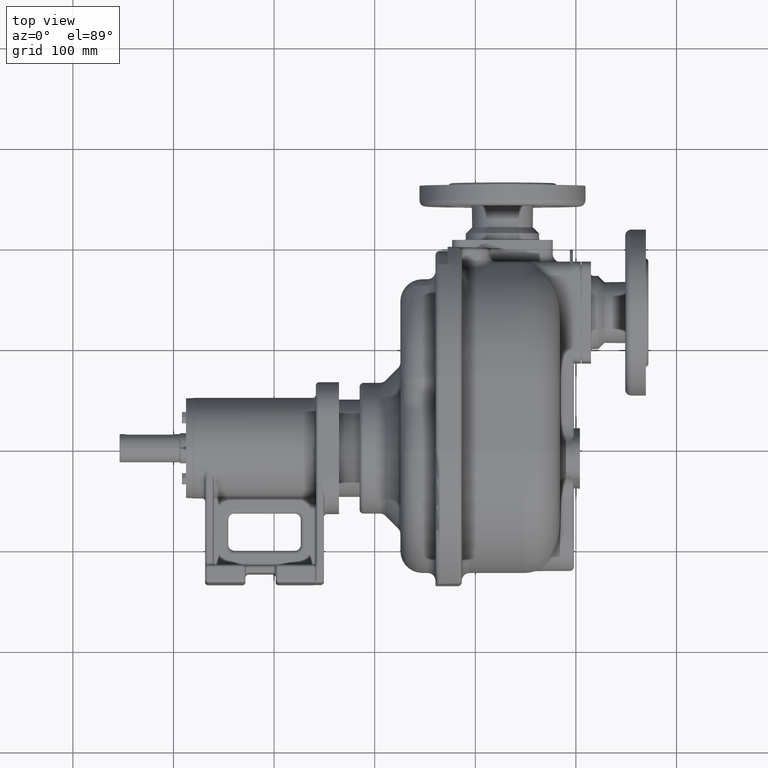
[diagram: clean part render]
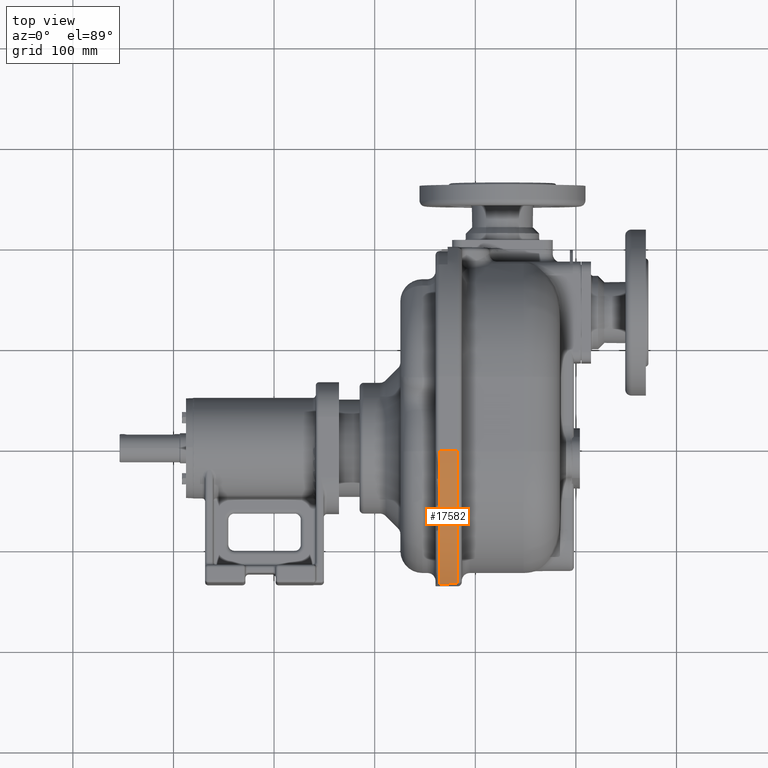
[diagram: same view with one face highlighted and labeled with its STEP entity id]
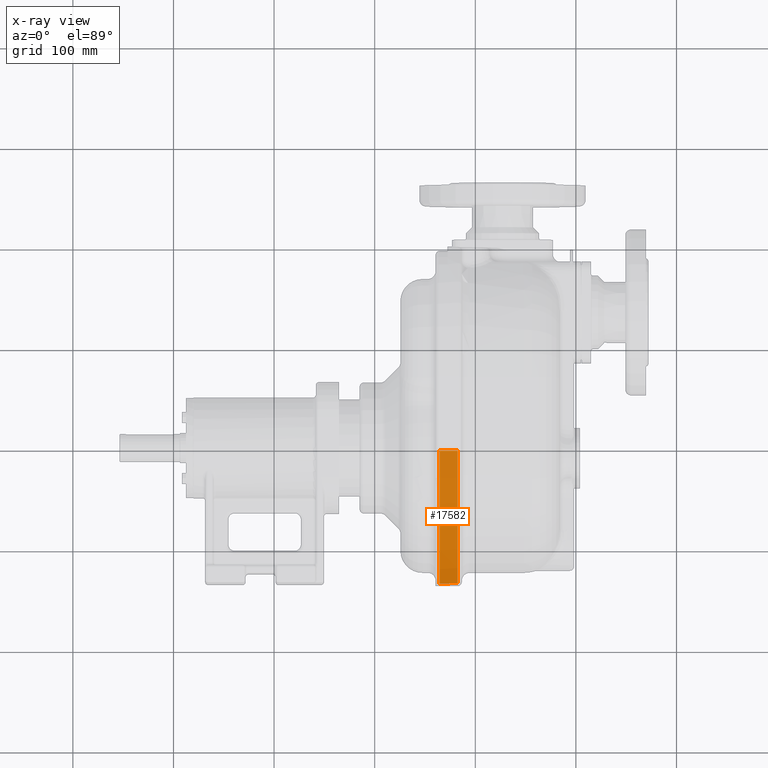
[diagram: x-ray of the same camera — body ghosted, the highlighted face saturated]
A machine part, top view. The second image highlights one B-rep face of the part: STEP entity #17582.
The next image is the same camera in x-ray: the body ghosted, the highlighted face saturated — about 0% of this face is hidden behind the body in this view.
In plain terms, the highlighted cylindrical surface (partial cylindrical patch) has radius 147 mm, axis along (-1, 0, 0).
Its self-contained STEP definition (entity closure, byte-faithful):
#4636=DIRECTION('',(1.E0,1.776356839400E-14,3.641531520771E-14));
#4637=VECTOR('',#4636,8.E0);
#4638=CARTESIAN_POINT('',(-2.55E1,-1.350791366906E2,6.347202492855E1));
#4639=LINE('',#4638,#4637);
#4640=DIRECTION('',(-1.E0,0.E0,0.E0));
#4641=VECTOR('',#4640,1.E1);
#4642=CARTESIAN_POINT('',(-2.55E1,-1.36E2,6.169332800213E1));
#4643=LINE('',#4642,#4641);
#4644=CARTESIAN_POINT('',(-3.55E1,-5.E0,-5.E0));
#4645=DIRECTION('',(-1.E0,0.E0,0.E0));
#4646=DIRECTION('',(0.E0,-8.911564625850E-1,4.536961088580E-1));
#4647=AXIS2_PLACEMENT_3D('',#4644,#4645,#4646);
#4649=DIRECTION('',(1.E0,0.E0,0.E0));
#4650=VECTOR('',#4649,1.8E1);
#4651=CARTESIAN_POINT('',(-3.55E1,-5.E0,1.42E2));
#4652=LINE('',#4651,#4650);
#4653=CARTESIAN_POINT('',(-1.75E1,-5.E0,-5.E0));
#4654=DIRECTION('',(1.E0,0.E0,0.E0));
#4655=DIRECTION('',(0.E0,0.E0,1.E0));
#4656=AXIS2_PLACEMENT_3D('',#4653,#4654,#4655);
#4672=CARTESIAN_POINT('',(-2.55E1,-5.E0,-5.E0));
#4673=DIRECTION('',(-1.E0,0.E0,0.E0));
#4674=DIRECTION('',(0.E0,-8.911564625850E-1,4.536961088580E-1));
#4675=AXIS2_PLACEMENT_3D('',#4672,#4673,#4674);
#4723=CARTESIAN_POINT('',(-3.55E1,-1.36E2,6.169332800213E1));
#10106=CARTESIAN_POINT('',(-1.75E1,-1.350791366906E2,6.347202492855E1));
#10107=VERTEX_POINT('',#10106);
#10110=CARTESIAN_POINT('',(-1.75E1,-5.E0,1.42E2));
#10111=VERTEX_POINT('',#10110);
#10243=CARTESIAN_POINT('',(-3.55E1,-5.E0,1.42E2));
#10245=VERTEX_POINT('',#10243);
#10277=VERTEX_POINT('',#4723);
#10279=CARTESIAN_POINT('',(-2.55E1,-1.36E2,6.169332800213E1));
#10280=VERTEX_POINT('',#10279);
#10295=CARTESIAN_POINT('',(-2.55E1,-1.350791366906E2,6.347202492855E1));
#10297=VERTEX_POINT('',#10295);
#17564=CARTESIAN_POINT('',(-2.75E1,-5.E0,-5.E0));
#17565=DIRECTION('',(-1.E0,0.E0,0.E0));
#17566=DIRECTION('',(0.E0,0.E0,1.E0));
#17567=AXIS2_PLACEMENT_3D('',#17564,#17565,#17566);
#17568=CYLINDRICAL_SURFACE('',#17567,1.47E2);
#17570=ORIENTED_EDGE('',*,*,#17569,.F.);
#17572=ORIENTED_EDGE('',*,*,#17571,.F.);
#17574=ORIENTED_EDGE('',*,*,#17573,.T.);
#17576=ORIENTED_EDGE('',*,*,#17575,.T.);
#17577=ORIENTED_EDGE('',*,*,#17554,.T.);
#17579=ORIENTED_EDGE('',*,*,#17578,.T.);
#17580=EDGE_LOOP('',(#17570,#17572,#17574,#17576,#17577,#17579));
#17581=FACE_OUTER_BOUND('',#17580,.F.);
#17582=ADVANCED_FACE('',(#17581),#17568,.T.);
#4648=CIRCLE('',#4647,1.47E2);
#4657=CIRCLE('',#4656,1.47E2);
#4676=CIRCLE('',#4675,1.47E2);
#17554=EDGE_CURVE('',#10245,#10111,#4652,.T.);
#17569=EDGE_CURVE('',#10297,#10107,#4639,.T.);
#17571=EDGE_CURVE('',#10280,#10297,#4676,.T.);
#17573=EDGE_CURVE('',#10280,#10277,#4643,.T.);
#17575=EDGE_CURVE('',#10277,#10245,#4648,.T.);
#17578=EDGE_CURVE('',#10111,#10107,#4657,.T.);